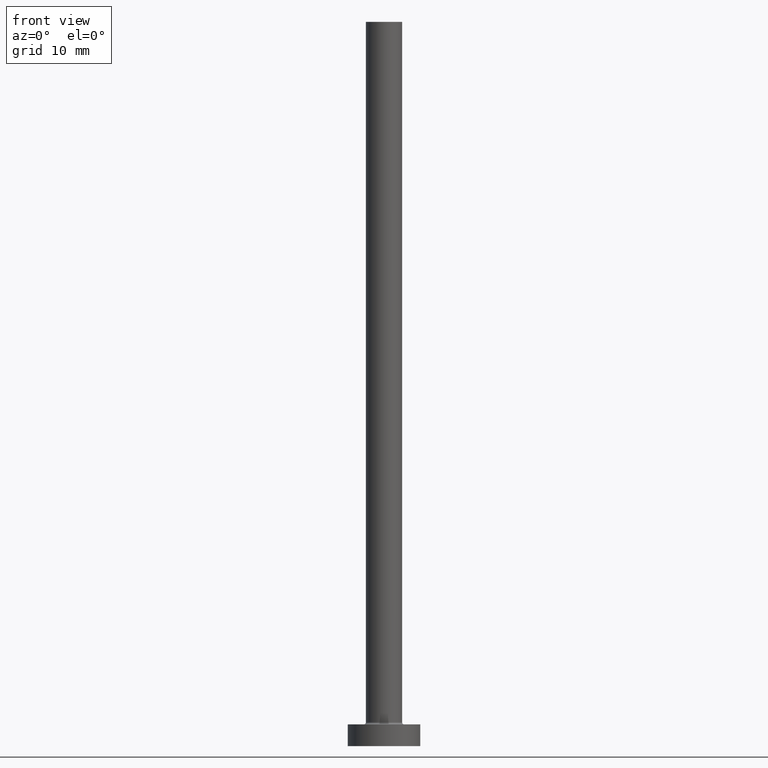
[diagram: clean part render]
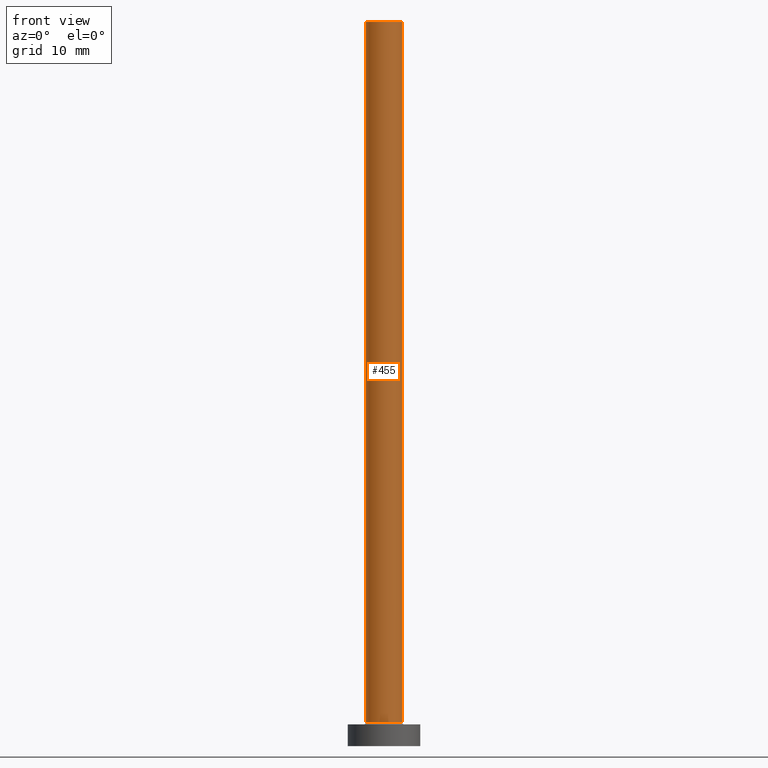
[diagram: same view with one face highlighted and labeled with its STEP entity id]
A machine part, front view. The second image highlights one B-rep face of the part: STEP entity #455.
In plain terms, the highlighted cylindrical surface (edge-blend (fillet) strip) has radius 2.5 mm, axis along (-0, -0, -1).
Its self-contained STEP definition (entity closure, byte-faithful):
#17 = DIRECTION ( 'NONE',  ( 0.000000000000000000, 0.000000000000000000, 1.000000000000000000 ) ) ;
#26 = VERTEX_POINT ( 'NONE', #82 ) ;
#28 = ORIENTED_EDGE ( 'NONE', *, *, #159, .T. ) ;
#35 = VECTOR ( 'NONE', #64, 1000.000000000000000 ) ;
#42 = CARTESIAN_POINT ( 'NONE',  ( 0.000000000000000000, 0.000000000000000000, 100.0000000000000000 ) ) ;
#59 = CIRCLE ( 'NONE', #174, 2.500000000000000000 ) ;
#64 = DIRECTION ( 'NONE',  ( -0.000000000000000000, -0.000000000000000000, -1.000000000000000000 ) ) ;
#82 = CARTESIAN_POINT ( 'NONE',  ( -2.500000000000000000, 0.000000000000000000, 100.0000000000000000 ) ) ;
#90 = CYLINDRICAL_SURFACE ( 'NONE', #214, 2.500000000000000000 ) ;
#95 = FACE_OUTER_BOUND ( 'NONE', #175, .T. ) ;
#97 = ORIENTED_EDGE ( 'NONE', *, *, #165, .F. ) ;
#98 = CARTESIAN_POINT ( 'NONE',  ( 0.000000000000000000, 0.000000000000000000, 3.299999999999997158 ) ) ;
#111 = DIRECTION ( 'NONE',  ( -0.000000000000000000, -0.000000000000000000, -1.000000000000000000 ) ) ;
#132 = VERTEX_POINT ( 'NONE', #216 ) ;
#156 = DIRECTION ( 'NONE',  ( -1.000000000000000000, 0.000000000000000000, 0.000000000000000000 ) ) ;
#159 = EDGE_CURVE ( 'NONE', #173, #331, #59, .T. ) ;
#165 = EDGE_CURVE ( 'NONE', #26, #132, #167, .T. ) ;
#167 = CIRCLE ( 'NONE', #181, 2.500000000000000000 ) ;
#173 = VERTEX_POINT ( 'NONE', #301 ) ;
#174 = AXIS2_PLACEMENT_3D ( 'NONE', #98, #17, #192 ) ;
#175 = EDGE_LOOP ( 'NONE', ( #430, #97, #238, #28 ) ) ;
#177 = EDGE_CURVE ( 'NONE', #132, #331, #255, .T. ) ;
#181 = AXIS2_PLACEMENT_3D ( 'NONE', #185, #332, #343 ) ;
#185 = CARTESIAN_POINT ( 'NONE',  ( 0.000000000000000000, 0.000000000000000000, 100.0000000000000000 ) ) ;
#188 = CARTESIAN_POINT ( 'NONE',  ( 2.500000000000000000, 3.061616997868382648E-16, 100.0000000000000000 ) ) ;
#192 = DIRECTION ( 'NONE',  ( 1.000000000000000000, 0.000000000000000000, 0.000000000000000000 ) ) ;
#214 = AXIS2_PLACEMENT_3D ( 'NONE', #42, #111, #156 ) ;
#216 = CARTESIAN_POINT ( 'NONE',  ( 2.500000000000000000, 3.061616997868382648E-16, 100.0000000000000000 ) ) ;
#238 = ORIENTED_EDGE ( 'NONE', *, *, #347, .T. ) ;
#246 = CARTESIAN_POINT ( 'NONE',  ( -2.500000000000000000, 0.000000000000000000, 100.0000000000000000 ) ) ;
#252 = VECTOR ( 'NONE', #361, 1000.000000000000000 ) ;
#255 = LINE ( 'NONE', #188, #35 ) ;
#301 = CARTESIAN_POINT ( 'NONE',  ( -2.500000000000000000, 0.000000000000000000, 3.299999999999997158 ) ) ;
#322 = CARTESIAN_POINT ( 'NONE',  ( 2.500000000000000000, 3.061616997868382648E-16, 3.299999999999997158 ) ) ;
#331 = VERTEX_POINT ( 'NONE', #322 ) ;
#332 = DIRECTION ( 'NONE',  ( 0.000000000000000000, 0.000000000000000000, 1.000000000000000000 ) ) ;
#343 = DIRECTION ( 'NONE',  ( 1.000000000000000000, 0.000000000000000000, 0.000000000000000000 ) ) ;
#347 = EDGE_CURVE ( 'NONE', #26, #173, #437, .T. ) ;
#361 = DIRECTION ( 'NONE',  ( -0.000000000000000000, -0.000000000000000000, -1.000000000000000000 ) ) ;
#430 = ORIENTED_EDGE ( 'NONE', *, *, #177, .F. ) ;
#437 = LINE ( 'NONE', #246, #252 ) ;
#455 = ADVANCED_FACE ( 'NONE', ( #95 ), #90, .T. ) ;